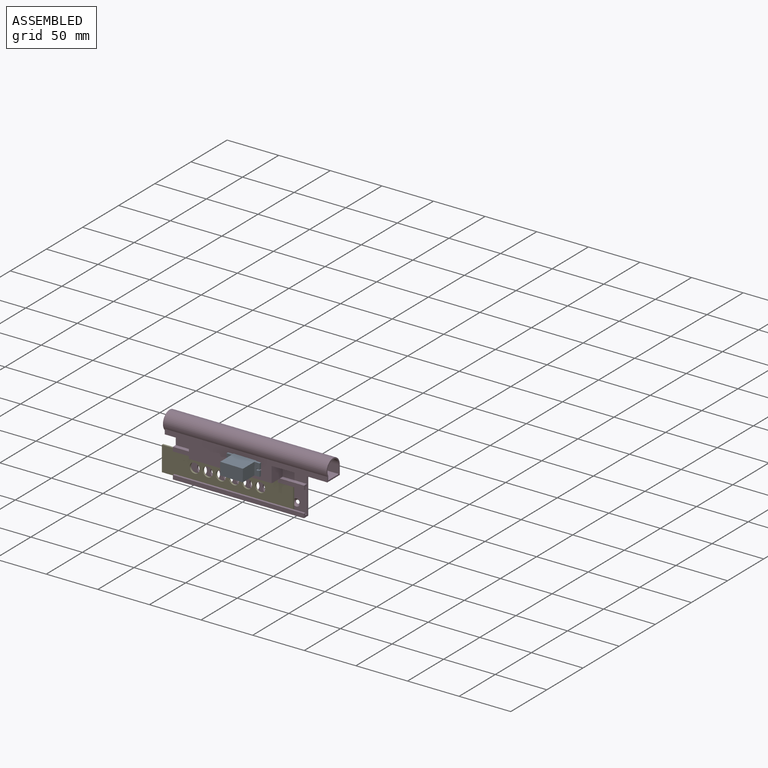
[diagram: assembled view]
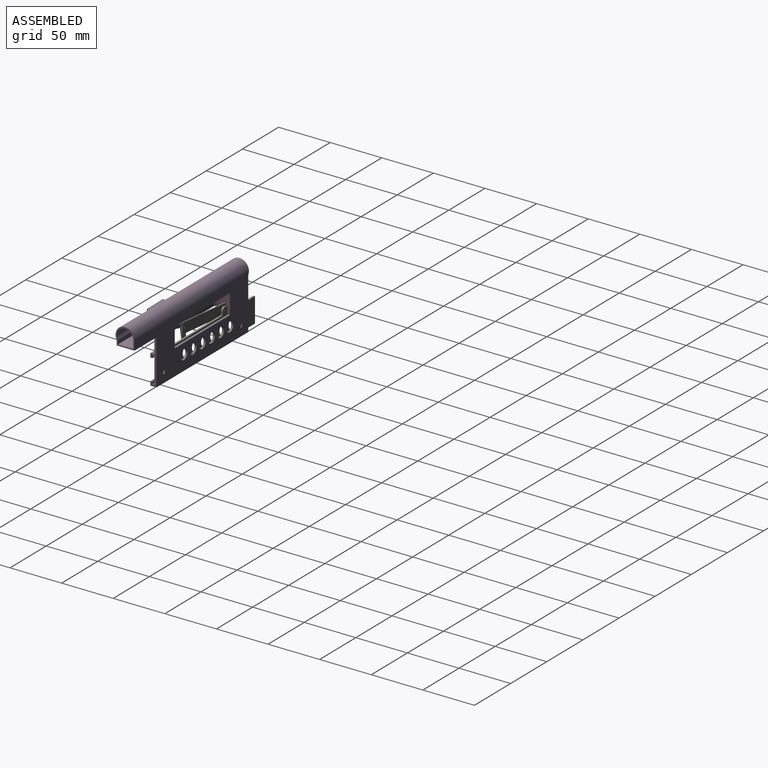
[diagram: assembled view, second angle]
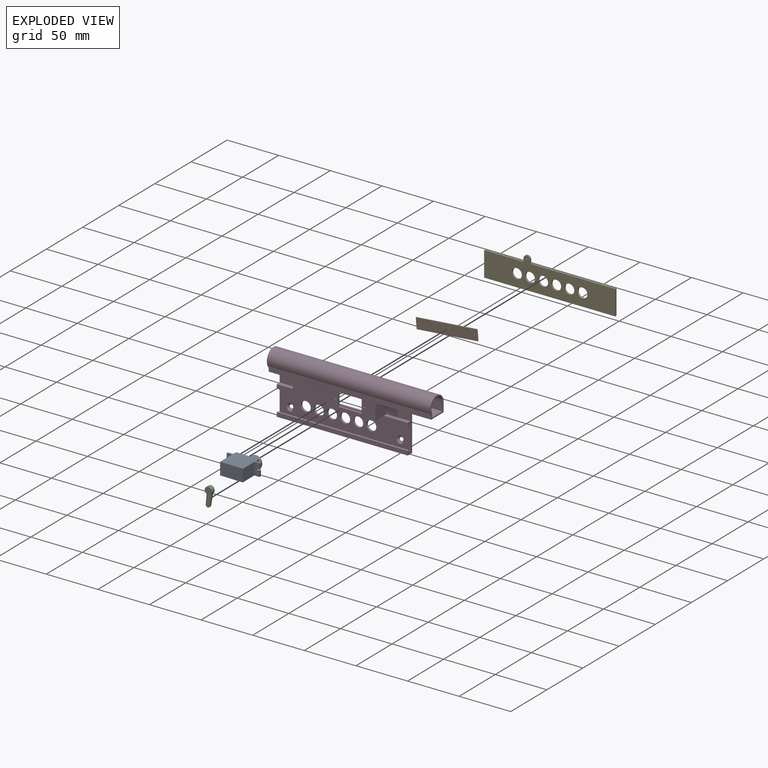
[diagram: exploded view]
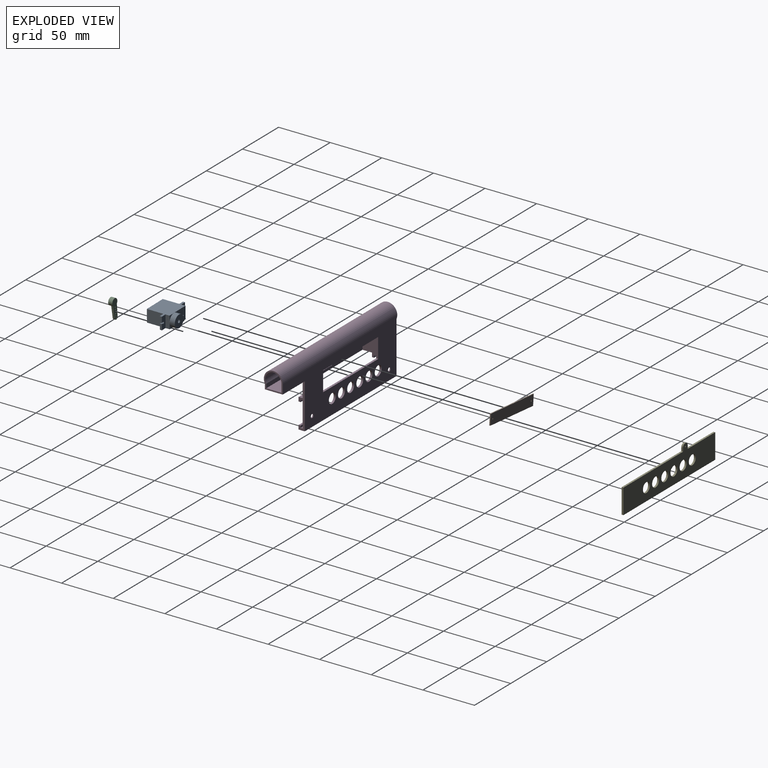
[diagram: exploded view, second angle]
ASSEMBLY  parts=5 mates=4
PART A: 43 faces, bbox 32x12x27 mm
  f0: plane 15x10mm, normal (0,0,-1), area 104mm2, adj f3,f4,f5,f8,f10,f11,f12
  f1: plane 5x5mm, normal (0,0,-1), area 5.4mm2, adj f2,f5,f8
  f2: plane 20x10mm, normal (-1,0,0), area 200mm2, adj f1,f4,f5,f6,f7
  f3: plane 20x10mm, normal (1,0,0), area 200mm2, adj f0,f4,f5,f7
  f4: plane 20x20mm, normal (0,-1,0), area 400mm2, adj f0,f2,f3,f6,f7
  f5: plane 20x20mm, normal (0,1,0), area 400mm2, adj f0,f1,f2,f3,f7
  f6: plane 5x5mm, normal (0,0,-1), area 5.4mm2, adj f2,f4,f8
  f7: plane 20x10mm, normal (0,0,1), area 200mm2, adj f2,f3,f4,f5
  f8: cylinder r=5mm len=10mm, axis (0,0,-1), area 141.8mm2, adj f0,f1,f6,f9,f11,f12
  f9: plane 12.5x10mm, normal (0,0,-1), area 78.2mm2, adj f8,f10,f11,f12,f13
  f10: cylinder r=1.5mm len=5mm, axis (0,0,-1), area 23.6mm2, adj f0,f9,f11,f12
  f11: plane 5x1.23mm, normal (0,1,0), area 6.2mm2, adj f0,f8,f9,f10
  f12: plane 5x1.23mm, normal (0,-1,0), area 6.2mm2, adj f0,f8,f9,f10
  f13: cylinder r=1.5mm len=3mm, axis (0,0,1), area 9.4mm2, adj f9,f39
  f14: plane 16x12mm, normal (0,0,1), area 124.7mm2, adj f25,f26,f27,f38,f40,f41,f42
  f15: plane 6x6mm, normal (0,0,1), area 7.7mm2, adj f22,f27,f38
  f16: plane 12x5mm, normal (0,0,1), area 55.8mm2, adj f18,f25,f26,f27,f30,f35,f36,f37
  f17: plane 12x5mm, normal (0,0,-1), area 55.8mm2, adj f18,f24,f26,f27,f30,f35,f36,f37
  f18: plane 5.5x2mm, normal (-1,0,0), area 11mm2, adj f16,f17,f26,f36
  f19: plane 12x5mm, normal (0,0,-1), area 55.8mm2, adj f21,f23,f26,f27,f31,f32,f33,f34
  f20: plane 12x5mm, normal (0,0,1), area 55.8mm2, adj f21,f22,f26,f27,f31,f32,f33,f34
  f21: plane 5.5x2mm, normal (1,0,0), area 11mm2, adj f19,f20,f27,f33
  f22: plane 12x4mm, normal (1,0,0), area 48mm2, adj f15,f20,f26,f27,f28
  f23: plane 16x12mm, normal (1,0,0), area 192mm2, adj f19,f26,f27,f29
  f24: plane 16x12mm, normal (-1,0,0), area 192mm2, adj f17,f26,f27,f29
  f25: plane 12x4mm, normal (-1,0,0), area 48mm2, adj f14,f16,f26,f27
  f26: plane 32x22mm, normal (0,1,0), area 504mm2, adj f14,f16,f17,f18,f19,f20,f22,f23
  f27: plane 32x22mm, normal (0,-1,0), area 504mm2, adj f14,f15,f16,f17,f19,f20,f21,f22
  f28: plane 6x6mm, normal (0,0,1), area 7.7mm2, adj f22,f26,f38
  f29: plane 22x12mm, normal (0,0,-1), area 264mm2, adj f23,f24,f26,f27
  f30: plane 5.5x2mm, normal (-1,0,0), area 11mm2, adj f16,f17,f27,f37
  f31: plane 5.5x2mm, normal (1,0,0), area 11mm2, adj f19,f20,f26,f34
  f32: cylinder r=1mm len=2mm, axis (0,0,1), area 10.5mm2, adj f19,f20,f33,f34
  f33: plane 2x1.13mm, normal (0,1,0), area 2.3mm2, adj f19,f20,f21,f32
  f34: plane 2x1.13mm, normal (0,-1,0), area 2.3mm2, adj f19,f20,f31,f32
  f35: cylinder r=1mm len=2mm, axis (0,0,1), area 10.5mm2, adj f16,f17,f36,f37
  f36: plane 2x1.13mm, normal (0,-1,0), area 2.3mm2, adj f16,f17,f18,f35
  f37: plane 2x1.13mm, normal (0,1,0), area 2.3mm2, adj f16,f17,f30,f35
  f38: cylinder r=6mm len=12mm, axis (0,0,-1), area 162.7mm2, adj f14,f15,f28,f39,f41,f42
  f39: plane 14.5x12mm, normal (0,0,1), area 116.7mm2, adj f13,f38,f40,f41,f42
  f40: cylinder r=2.5mm len=5mm, axis (0,0,-1), area 39.3mm2, adj f14,f39,f41,f42
  f41: plane 5x0.55mm, normal (0,-1,0), area 2.7mm2, adj f14,f38,f39,f40
  f42: plane 5x0.55mm, normal (0,1,0), area 2.7mm2, adj f14,f38,f39,f40
PART B: 8 faces, bbox 59.4x1x10.2 mm
  f0: plane 10.16x1.02mm, normal (-1,0,0), area 10.3mm2, adj f1,f4,f6,f7
  f1: plane 59.44x1.02mm, normal (0,0,-1), area 60.4mm2, adj f0,f2,f6,f7
  f2: plane 10.16x1.02mm, normal (1,0,0), area 10.3mm2, adj f1,f4,f6,f7
  f3: cylinder r=0.51mm len=1.02mm, axis (0,1,0), area 3.2mm2, adj f6,f7
  f4: plane 59.44x1.02mm, normal (0,0,1), area 60.4mm2, adj f0,f2,f6,f7
  f5: cylinder r=0.51mm len=1.02mm, axis (0,1,0), area 3.2mm2, adj f6,f7
  f6: plane 59.44x10.16mm, normal (0,-1,0), area 602.2mm2, adj f0,f1,f2,f3,f4,f5
  f7: plane 59.44x10.16mm, normal (0,1,0), area 602.2mm2, adj f0,f1,f2,f3,f4,f5
PART C: 13 faces, bbox 19.5x7x4 mm
  f0: cylinder r=3.5mm len=7mm, axis (0,0,-1), area 76.8mm2, adj f1,f2,f3,f4,f6
  f1: plane 7x7mm, normal (0,0,1), area 38.5mm2, adj f0
  f2: plane 19.5x7mm, normal (0,0,-1), area 89.2mm2, adj f0,f3,f4,f5,f7,f8,f9,f10
  f3: plane 11.64x2mm, normal (0.04,-1,0), area 23.3mm2, adj f0,f2,f5,f6
  f4: plane 11.64x2mm, normal (0.04,1,0), area 23.3mm2, adj f0,f2,f5,f6
  f5: cylinder r=2mm len=4mm, axis (0,0,-1), area 12.2mm2, adj f2,f3,f4,f6
  f6: plane 13.55x5mm, normal (0,0,1), area 50.7mm2, adj f0,f3,f4,f5,f7,f8,f9,f10
  f7: cylinder r=0.46mm len=2mm, axis (0,0,1), area 5.7mm2, adj f2,f6
  f8: cylinder r=0.46mm len=2mm, axis (0,0,1), area 5.7mm2, adj f2,f6
  f9: cylinder r=0.46mm len=2mm, axis (0,0,1), area 5.7mm2, adj f2,f6
  f10: cylinder r=0.46mm len=2mm, axis (0,0,1), area 5.7mm2, adj f2,f6
  f11: cylinder r=0.46mm len=2mm, axis (0,0,1), area 5.7mm2, adj f2,f6
  f12: cylinder r=0.46mm len=2mm, axis (0,0,1), area 5.7mm2, adj f2,f6
PART D: 55 faces, bbox 158.5x18.3x62.1 mm
  f0: plane 52.96x9.14mm, normal (-1,0,0), area 125.3mm2, adj f3,f4,f6,f7,f8,f9,f10,f11
  f1: plane 19.24x15.24mm, normal (-1,0,0), area 252.3mm2, adj f8,f9,f25,f26,f27,f28,f31,f33
  f2: plane 23.4x15.24mm, normal (0,-1,0), area 356.6mm2, adj f5,f14,f36,f43
  f3: plane 23.4x4mm, normal (0,0,1), area 93.6mm2, adj f0,f4,f6,f34
  f4: plane 23.4x15.24mm, normal (0,-1,0), area 356.6mm2, adj f0,f3,f34,f44
  f5: plane 23.4x4mm, normal (0,0,1), area 93.6mm2, adj f2,f14,f27,f36
  f6: plane 25.4x4mm, normal (0,-1,0), area 101.6mm2, adj f0,f3,f7,f32,f33
  f7: plane 25.4x2mm, normal (0,0,-1), area 50.8mm2, adj f0,f6,f11,f32
  f8: plane 127x24.58mm, normal (0,-1,0), area 2464.5mm2, adj f0,f1,f10,f14,f15,f16,f17,f18
  f9: plane 157.48x52.96mm, normal (0,1,0), area 5091.6mm2, adj f0,f1,f13,f14,f15,f16,f17,f18
  f10: plane 25.4x2mm, normal (0,0,-1), area 50.8mm2, adj f0,f8,f11,f32
  f11: plane 25.4x2mm, normal (0,1,0), area 50.8mm2, adj f0,f7,f10,f32
  f12: plane 8.1x4.89mm, normal (-1,0,0), area 9.6mm2, adj f35,f44,f46,f47,f49
  f13: plane 127x6mm, normal (0,0,-1), area 762mm2, adj f0,f9,f14,f24
  f14: plane 43.82x6mm, normal (1,0,0), area 111.6mm2, adj f2,f5,f8,f9,f13,f21,f22,f23
  f15: cylinder r=4.76mm len=9.53mm, axis (0,1,0), area 59.8mm2, adj f8,f9
  f16: cylinder r=4.76mm len=9.53mm, axis (0,1,0), area 59.8mm2, adj f8,f9
  f17: cylinder r=4.76mm len=9.53mm, axis (0,1,0), area 59.8mm2, adj f8,f9
  f18: cylinder r=4.76mm len=9.53mm, axis (0,1,0), area 59.8mm2, adj f8,f9
  f19: cylinder r=4.76mm len=9.53mm, axis (0,1,0), area 59.8mm2, adj f8,f9
  f20: cylinder r=4.76mm len=9.53mm, axis (0,1,0), area 59.8mm2, adj f8,f9
  f21: plane 127x2mm, normal (0,0,1), area 254mm2, adj f0,f8,f14,f22
  f22: plane 127x2mm, normal (0,1,0), area 254mm2, adj f0,f14,f21,f23
  f23: plane 127x2mm, normal (0,0,1), area 254mm2, adj f0,f14,f22,f24
  f24: plane 127x4mm, normal (0,-1,0), area 508mm2, adj f0,f13,f14,f23
  f25: plane 25.4x2mm, normal (0,0,-1), area 50.8mm2, adj f1,f8,f14,f26
  f26: plane 25.4x2mm, normal (0,1,0), area 50.8mm2, adj f1,f14,f25,f28
  f27: plane 25.4x4mm, normal (0,-1,0), area 101.6mm2, adj f1,f5,f14,f28,f33
  f28: plane 25.4x2mm, normal (0,0,-1), area 50.8mm2, adj f1,f14,f26,f27
  f29: cone r=1.63mm half-angle=41deg, axis (0,-1,0), area 43.7mm2, adj f8,f9
  f30: cone r=1.63mm half-angle=41deg, axis (0,-1,0), area 43.7mm2, adj f8,f9
  f31: plane 76.2x2mm, normal (0,0,1), area 152.4mm2, adj f1,f8,f9,f32
  f32: plane 19.24x15.24mm, normal (1,0,0), area 252.3mm2, adj f6,f7,f8,f9,f10,f11,f31,f33
  f33: plane 80.2x11.24mm, normal (0,0,-1), area 197.4mm2, adj f1,f6,f27,f32,f34,f35,f36,f37
  f34: plane 15.24x15.24mm, normal (-1,0,0), area 232.3mm2, adj f3,f4,f33,f35,f44
  f35: plane 157.48x20.13mm, normal (0,-1,0), area 1698.9mm2, adj f12,f33,f34,f36,f38,f39,f40,f41
  f36: plane 15.24x15.24mm, normal (1,0,0), area 232.3mm2, adj f2,f5,f33,f35,f43
  f37: plane 76.2x15.24mm, normal (0,1,0), area 867.3mm2, adj f1,f32,f33,f38,f39,f40,f41,f42
  f38: plane 12.7x2mm, normal (1,0,0), area 25.4mm2, adj f35,f37,f39,f45
  f39: plane 22.86x2mm, normal (0,0,1), area 45.7mm2, adj f35,f37,f38,f40
  f40: plane 12.7x2mm, normal (-1,0,0), area 25.4mm2, adj f35,f37,f39,f45
  f41: cylinder r=0.76mm len=2mm, axis (0,-1,0), area 9.6mm2, adj f35,f37
  f42: cylinder r=0.76mm len=2mm, axis (0,-1,0), area 9.6mm2, adj f35,f37
  f43: plane 53.88x17.24mm, normal (0,0,-1), area 882.1mm2, adj f2,f9,f14,f35,f36,f51
  f44: plane 23.4x15.24mm, normal (0,0,-1), area 356.6mm2, adj f0,f4,f12,f34,f35
  f45: plane 76.2x17.24mm, normal (0,0,-1), area 1207mm2, adj f1,f9,f32,f35,f37,f38,f40
  f46: plane 157.48x3.95mm, normal (0,1,0), area 621.9mm2, adj f12,f47,f50,f51,f52
  f47: plane 157.48x14.7mm, normal (0,0,1), area 2315mm2, adj f0,f12,f46,f48,f51,f52
  f48: plane 157.48x7.87mm, normal (0,-1,0), area 1240mm2, adj f0,f47,f50,f51,f52
  f49: cylinder r=9.14mm len=158.5mm, axis (-1,0,0), area 5273.5mm2, adj f0,f9,f12,f35,f51,f52,f53,f54
  f50: cylinder r=7.87mm len=157.48mm, axis (-1,0,0), area 4542.6mm2, adj f46,f48,f51,f52
  f51: plane 18.29x18.29mm, normal (1,0,0), area 76.1mm2, adj f9,f35,f43,f46,f47,f48,f49,f50
  f52: plane 15.75x15.75mm, normal (1,0,0), area 209.9mm2, adj f46,f47,f48,f49,f50
  f53: extruded ~4.65x1.27mm, area 5mm2, adj f0,f49,f54
  f54: plane 18.29x18.29mm, normal (-1,0,0), area 262.7mm2, adj f49,f53
PART E: 19 faces, bbox 127x1.7x30.4 mm
  f0: plane 38.1x1.75mm, normal (0,0,1), area 66.5mm2, adj f2,f3,f6,f18
  f1: plane 24.07x1.75mm, normal (1,0,0), area 42mm2, adj f2,f4,f5,f6
  f2: plane 127x30.42mm, normal (0,1,0), area 2664.5mm2, adj f0,f1,f3,f4,f5,f7,f8,f9
  f3: plane 24.07x1.75mm, normal (-1,0,0), area 42mm2, adj f0,f2,f5,f6
  f4: plane 82.55x1.75mm, normal (0,0,1), area 144.1mm2, adj f1,f2,f6,f13
  f5: plane 127x1.75mm, normal (0,0,-1), area 221.7mm2, adj f1,f2,f3,f6
  f6: plane 127x30.42mm, normal (0,-1,0), area 2664.5mm2, adj f0,f1,f3,f4,f5,f7,f8,f9
  f7: cylinder r=4.76mm len=9.53mm, axis (0,-1,0), area 52.2mm2, adj f2,f6
  f8: cylinder r=4.76mm len=9.53mm, axis (0,-1,0), area 52.2mm2, adj f2,f6
  f9: cylinder r=4.76mm len=9.53mm, axis (0,-1,0), area 52.2mm2, adj f2,f6
  f10: cylinder r=4.76mm len=9.53mm, axis (0,-1,0), area 52.2mm2, adj f2,f6
  f11: cylinder r=4.76mm len=9.53mm, axis (0,-1,0), area 52.2mm2, adj f2,f6
  f12: cylinder r=4.76mm len=9.53mm, axis (0,-1,0), area 52.2mm2, adj f2,f6
  f13: plane 3.3x1.75mm, normal (1,0,0), area 5.8mm2, adj f2,f4,f6,f14
  f14: cylinder r=3.05mm len=3.05mm, axis (0,-1,0), area 8.4mm2, adj f2,f6,f13,f15
  f15: plane 1.75x0.25mm, normal (0,0,1), area 0.4mm2, adj f2,f6,f14,f16
  f16: cylinder r=3.05mm len=3.05mm, axis (0,-1,0), area 8.4mm2, adj f2,f6,f15,f18
  f17: cylinder r=0.51mm len=1.75mm, axis (0,-1,0), area 5.6mm2, adj f2,f6
  f18: plane 3.3x1.75mm, normal (-1,0,0), area 5.8mm2, adj f0,f2,f6,f16
PLACE A rot(axis=(-1,0.01,0.01),90deg) t=(72.65,18.37,-11.97)mm
PLACE B rot(axis=(0,-1,0),5deg) t=(51.4,50.39,28.63)mm
PLACE C rot(axis=(0.53,0.6,-0.6),124.6deg) t=(66.57,49.37,-17.89)mm
PLACE D t=(-16.21,54.36,-56.54)mm fixed
PLACE E t=(-28.44,54.61,-56.54)mm
MATE cylindrical B.f3 <-> E.f17  axis (0,1,0) through (12.83,50.39,-26.92)mm
MATE revolute A.f8 <-> C.f0  axis (0,1,0) through (66.57,45.37,-17.89)mm
MATE revolute B.f5 <-> C.f12  axis (0,-1,0) through (65.97,49.37,-22.29)mm
MATE planar D.f8 <-> E.f2  axis (0,-1,0) through (-16.21,52.36,-42.25)mm
